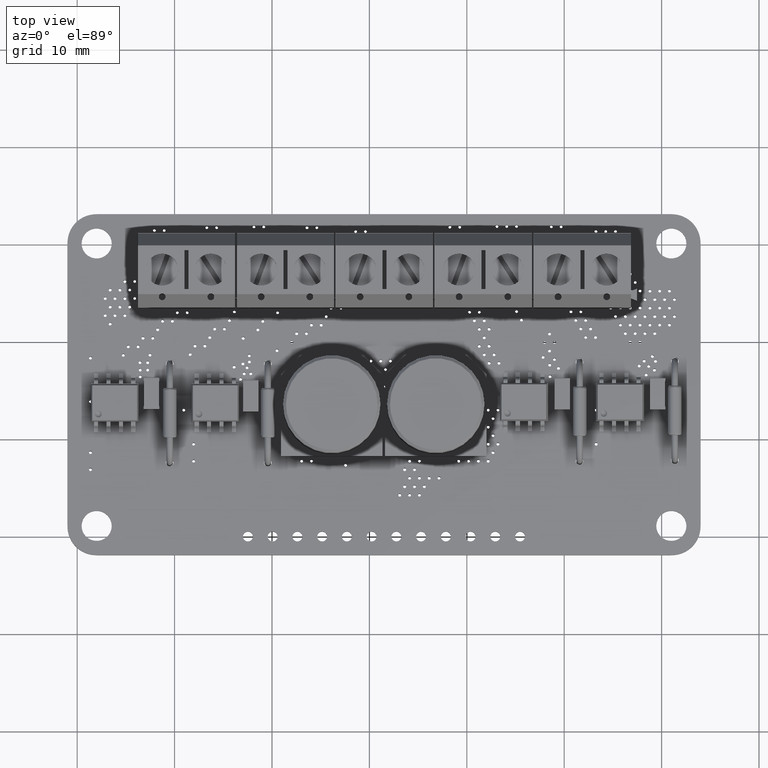
[diagram: clean part render]
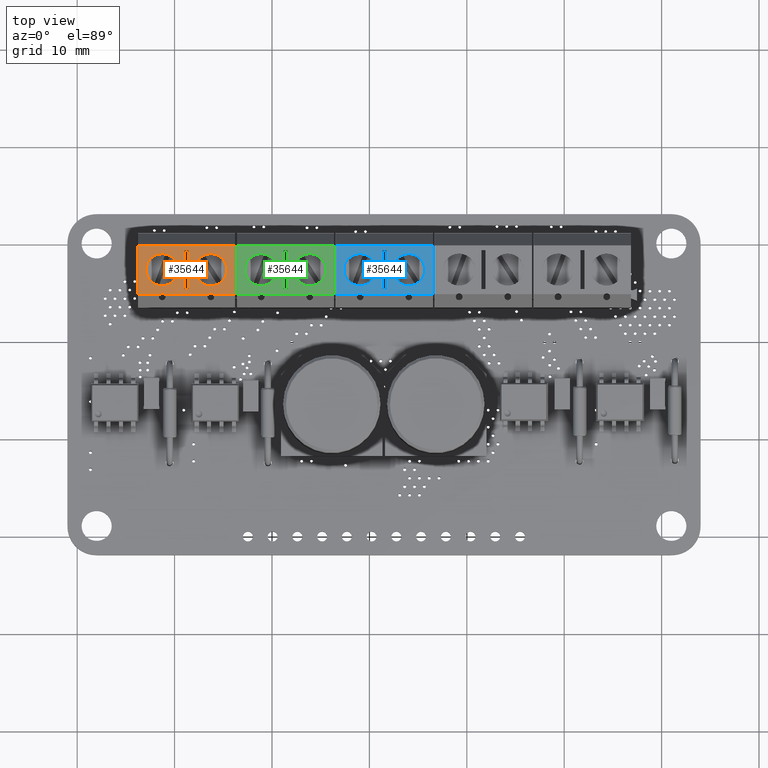
[diagram: same view with three faces highlighted in distinct colors, each labeled with its STEP entity id]
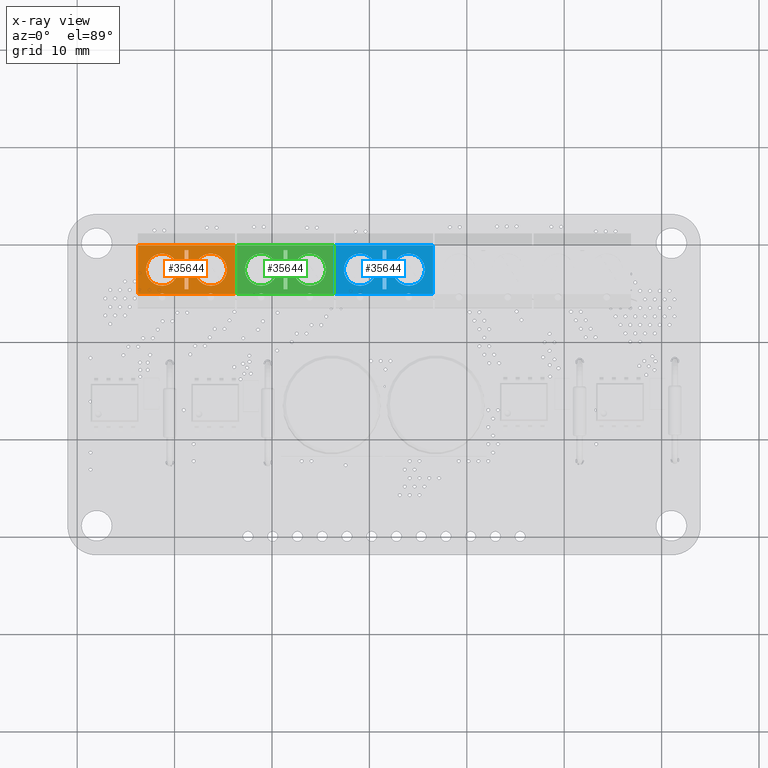
[diagram: x-ray of the same camera — body ghosted, the three highlighted faces saturated]
A machine part, top view with three faces highlighted in distinct colors.
The next image is the same camera in x-ray (body ghosted, the three faces saturated) — at least one of them is partly hidden behind the body in this view.
Their STEP definitions:

[orange] entity #35644 — the highlighted planar face has unit normal (-0, 0, 1).
#34349 = VERTEX_POINT('',#34350);
#34350 = CARTESIAN_POINT('',(2.5,10.,-2.43));
#34356 = EDGE_CURVE('',#34357,#34349,#34359,.T.);
#34357 = VERTEX_POINT('',#34358);
#34358 = CARTESIAN_POINT('',(2.29,10.,-2.5));
#34359 = CIRCLE('',#34360,0.35);
#34360 = AXIS2_PLACEMENT_3D('',#34361,#34362,#34363);
#34361 = CARTESIAN_POINT('',(2.5,10.,-2.78));
#34362 = DIRECTION('',(0.E+000,1.,0.E+000));
#34363 = DIRECTION('',(0.E+000,-0.E+000,1.));
#34400 = VERTEX_POINT('',#34401);
#34401 = CARTESIAN_POINT('',(-2.5,10.,-2.43));
#34407 = EDGE_CURVE('',#34408,#34400,#34410,.T.);
#34408 = VERTEX_POINT('',#34409);
#34409 = CARTESIAN_POINT('',(-2.71,10.,-2.5));
#34410 = CIRCLE('',#34411,0.35);
#34411 = AXIS2_PLACEMENT_3D('',#34412,#34413,#34414);
#34412 = CARTESIAN_POINT('',(-2.5,10.,-2.78));
#34413 = DIRECTION('',(0.E+000,1.,0.E+000));
#34414 = DIRECTION('',(0.E+000,-0.E+000,1.));
#34485 = VERTEX_POINT('',#34486);
#34486 = CARTESIAN_POINT('',(2.5,10.,1.65));
#34492 = EDGE_CURVE('',#34493,#34485,#34495,.T.);
#34493 = VERTEX_POINT('',#34494);
#34494 = CARTESIAN_POINT('',(2.5,10.,-1.65));
#34495 = CIRCLE('',#34496,1.65);
#34496 = AXIS2_PLACEMENT_3D('',#34497,#34498,#34499);
#34497 = CARTESIAN_POINT('',(2.5,10.,0.E+000));
#34498 = DIRECTION('',(0.E+000,1.,0.E+000));
#34499 = DIRECTION('',(0.E+000,-0.E+000,1.));
#34561 = VERTEX_POINT('',#34562);
#34562 = CARTESIAN_POINT('',(-2.5,10.,1.65));
#34568 = EDGE_CURVE('',#34569,#34561,#34571,.T.);
#34569 = VERTEX_POINT('',#34570);
#34570 = CARTESIAN_POINT('',(-2.5,10.,-1.65));
#34571 = CIRCLE('',#34572,1.65);
#34572 = AXIS2_PLACEMENT_3D('',#34573,#34574,#34575);
#34573 = CARTESIAN_POINT('',(-2.5,10.,0.E+000));
#34574 = DIRECTION('',(0.E+000,1.,0.E+000));
#34575 = DIRECTION('',(0.E+000,-0.E+000,1.));
#35009 = VERTEX_POINT('',#35010);
#35010 = CARTESIAN_POINT('',(5.,10.,-2.5));
#35016 = EDGE_CURVE('',#35017,#35009,#35019,.T.);
#35017 = VERTEX_POINT('',#35018);
#35018 = CARTESIAN_POINT('',(5.,10.,2.5));
#35019 = LINE('',#35020,#35021);
#35020 = CARTESIAN_POINT('',(5.,10.,-3.8));
#35021 = VECTOR('',#35022,1.);
#35022 = DIRECTION('',(-1.141265444722E-016,-0.E+000,-1.));
#35236 = VERTEX_POINT('',#35237);
#35237 = CARTESIAN_POINT('',(-5.,10.,2.5));
#35243 = EDGE_CURVE('',#35244,#35236,#35246,.T.);
#35244 = VERTEX_POINT('',#35245);
#35245 = CARTESIAN_POINT('',(-5.,10.,-2.5));
#35246 = LINE('',#35247,#35248);
#35247 = CARTESIAN_POINT('',(-5.,10.,-3.8));
#35248 = VECTOR('',#35249,1.);
#35249 = DIRECTION('',(1.141265444722E-016,0.E+000,1.));
#35644 = ADVANCED_FACE('',(#35645,#35693,#35727,#35737),#35747,.T.);
#35645 = FACE_BOUND('',#35646,.T.);
#35646 = EDGE_LOOP('',(#35647,#35648,#35656,#35663,#35664,#35670,#35671,
    #35677,#35678,#35686));
#35647 = ORIENTED_EDGE('',*,*,#34356,.F.);
#35648 = ORIENTED_EDGE('',*,*,#35649,.F.);
#35649 = EDGE_CURVE('',#35650,#34357,#35652,.T.);
#35650 = VERTEX_POINT('',#35651);
#35651 = CARTESIAN_POINT('',(-2.29,10.,-2.5));
#35652 = LINE('',#35653,#35654);
#35653 = CARTESIAN_POINT('',(-5.,10.,-2.5));
#35654 = VECTOR('',#35655,1.);
#35655 = DIRECTION('',(1.,-0.E+000,-0.E+000));
#35656 = ORIENTED_EDGE('',*,*,#35657,.F.);
#35657 = EDGE_CURVE('',#34400,#35650,#35658,.T.);
#35658 = CIRCLE('',#35659,0.35);
#35659 = AXIS2_PLACEMENT_3D('',#35660,#35661,#35662);
#35660 = CARTESIAN_POINT('',(-2.5,10.,-2.78));
#35661 = DIRECTION('',(0.E+000,1.,0.E+000));
#35662 = DIRECTION('',(0.E+000,-0.E+000,1.));
#35663 = ORIENTED_EDGE('',*,*,#34407,.F.);
#35664 = ORIENTED_EDGE('',*,*,#35665,.F.);
#35665 = EDGE_CURVE('',#35244,#34408,#35666,.T.);
#35666 = LINE('',#35667,#35668);
#35667 = CARTESIAN_POINT('',(-5.,10.,-2.5));
#35668 = VECTOR('',#35669,1.);
#35669 = DIRECTION('',(1.,-0.E+000,-0.E+000));
#35670 = ORIENTED_EDGE('',*,*,#35243,.T.);
#35671 = ORIENTED_EDGE('',*,*,#35672,.T.);
#35672 = EDGE_CURVE('',#35236,#35017,#35673,.T.);
#35673 = LINE('',#35674,#35675);
#35674 = CARTESIAN_POINT('',(-5.,10.,2.5));
#35675 = VECTOR('',#35676,1.);
#35676 = DIRECTION('',(1.,-0.E+000,-0.E+000));
#35677 = ORIENTED_EDGE('',*,*,#35016,.T.);
#35678 = ORIENTED_EDGE('',*,*,#35679,.F.);
#35679 = EDGE_CURVE('',#35680,#35009,#35682,.T.);
#35680 = VERTEX_POINT('',#35681);
#35681 = CARTESIAN_POINT('',(2.71,10.,-2.5));
#35682 = LINE('',#35683,#35684);
#35683 = CARTESIAN_POINT('',(-5.,10.,-2.5));
#35684 = VECTOR('',#35685,1.);
#35685 = DIRECTION('',(1.,-0.E+000,-0.E+000));
#35686 = ORIENTED_EDGE('',*,*,#35687,.F.);
#35687 = EDGE_CURVE('',#34349,#35680,#35688,.T.);
#35688 = CIRCLE('',#35689,0.35);
#35689 = AXIS2_PLACEMENT_3D('',#35690,#35691,#35692);
#35690 = CARTESIAN_POINT('',(2.5,10.,-2.78));
#35691 = DIRECTION('',(0.E+000,1.,0.E+000));
#35692 = DIRECTION('',(0.E+000,-0.E+000,1.));
#35693 = FACE_BOUND('',#35694,.T.);
#35694 = EDGE_LOOP('',(#35695,#35705,#35713,#35721));
#35695 = ORIENTED_EDGE('',*,*,#35696,.F.);
#35696 = EDGE_CURVE('',#35697,#35699,#35701,.T.);
#35697 = VERTEX_POINT('',#35698);
#35698 = CARTESIAN_POINT('',(-0.2,10.,-2.));
#35699 = VERTEX_POINT('',#35700);
#35700 = CARTESIAN_POINT('',(-0.2,10.,2.));
#35701 = LINE('',#35702,#35703);
#35702 = CARTESIAN_POINT('',(-0.2,10.,-2.));
#35703 = VECTOR('',#35704,1.);
#35704 = DIRECTION('',(0.E+000,0.E+000,1.));
#35705 = ORIENTED_EDGE('',*,*,#35706,.F.);
#35706 = EDGE_CURVE('',#35707,#35697,#35709,.T.);
#35707 = VERTEX_POINT('',#35708);
#35708 = CARTESIAN_POINT('',(0.2,10.,-2.));
#35709 = LINE('',#35710,#35711);
#35710 = CARTESIAN_POINT('',(-0.2,10.,-2.));
#35711 = VECTOR('',#35712,1.);
#35712 = DIRECTION('',(-1.,-0.E+000,1.084202172486E-015));
#35713 = ORIENTED_EDGE('',*,*,#35714,.F.);
#35714 = EDGE_CURVE('',#35715,#35707,#35717,.T.);
#35715 = VERTEX_POINT('',#35716);
#35716 = CARTESIAN_POINT('',(0.2,10.,2.));
#35717 = LINE('',#35718,#35719);
#35718 = CARTESIAN_POINT('',(0.2,10.,-2.));
#35719 = VECTOR('',#35720,1.);
#35720 = DIRECTION('',(6.776263578034E-018,-0.E+000,-1.));
#35721 = ORIENTED_EDGE('',*,*,#35722,.F.);
#35722 = EDGE_CURVE('',#35699,#35715,#35723,.T.);
#35723 = LINE('',#35724,#35725);
#35724 = CARTESIAN_POINT('',(-0.2,10.,2.));
#35725 = VECTOR('',#35726,1.);
#35726 = DIRECTION('',(1.,0.E+000,-1.084202172486E-015));
#35727 = FACE_BOUND('',#35728,.T.);
#35728 = EDGE_LOOP('',(#35729,#35736));
#35729 = ORIENTED_EDGE('',*,*,#35730,.F.);
#35730 = EDGE_CURVE('',#34485,#34493,#35731,.T.);
#35731 = CIRCLE('',#35732,1.65);
#35732 = AXIS2_PLACEMENT_3D('',#35733,#35734,#35735);
#35733 = CARTESIAN_POINT('',(2.5,10.,0.E+000));
#35734 = DIRECTION('',(0.E+000,1.,0.E+000));
#35735 = DIRECTION('',(0.E+000,-0.E+000,1.));
#35736 = ORIENTED_EDGE('',*,*,#34492,.F.);
#35737 = FACE_BOUND('',#35738,.T.);
#35738 = EDGE_LOOP('',(#35739,#35746));
#35739 = ORIENTED_EDGE('',*,*,#35740,.F.);
#35740 = EDGE_CURVE('',#34561,#34569,#35741,.T.);
#35741 = CIRCLE('',#35742,1.65);
#35742 = AXIS2_PLACEMENT_3D('',#35743,#35744,#35745);
#35743 = CARTESIAN_POINT('',(-2.5,10.,0.E+000));
#35744 = DIRECTION('',(0.E+000,1.,0.E+000));
#35745 = DIRECTION('',(0.E+000,-0.E+000,1.));
#35746 = ORIENTED_EDGE('',*,*,#34568,.F.);
#35747 = PLANE('',#35748);
#35748 = AXIS2_PLACEMENT_3D('',#35749,#35750,#35751);
#35749 = CARTESIAN_POINT('',(-5.,10.,-3.8));
#35750 = DIRECTION('',(0.E+000,1.,0.E+000));
#35751 = DIRECTION('',(0.E+000,-0.E+000,1.));

[blue] entity #35644 — the highlighted planar face has unit normal (-0, 0, 1).
#34349 = VERTEX_POINT('',#34350);
#34350 = CARTESIAN_POINT('',(2.5,10.,-2.43));
#34356 = EDGE_CURVE('',#34357,#34349,#34359,.T.);
#34357 = VERTEX_POINT('',#34358);
#34358 = CARTESIAN_POINT('',(2.29,10.,-2.5));
#34359 = CIRCLE('',#34360,0.35);
#34360 = AXIS2_PLACEMENT_3D('',#34361,#34362,#34363);
#34361 = CARTESIAN_POINT('',(2.5,10.,-2.78));
#34362 = DIRECTION('',(0.E+000,1.,0.E+000));
#34363 = DIRECTION('',(0.E+000,-0.E+000,1.));
#34400 = VERTEX_POINT('',#34401);
#34401 = CARTESIAN_POINT('',(-2.5,10.,-2.43));
#34407 = EDGE_CURVE('',#34408,#34400,#34410,.T.);
#34408 = VERTEX_POINT('',#34409);
#34409 = CARTESIAN_POINT('',(-2.71,10.,-2.5));
#34410 = CIRCLE('',#34411,0.35);
#34411 = AXIS2_PLACEMENT_3D('',#34412,#34413,#34414);
#34412 = CARTESIAN_POINT('',(-2.5,10.,-2.78));
#34413 = DIRECTION('',(0.E+000,1.,0.E+000));
#34414 = DIRECTION('',(0.E+000,-0.E+000,1.));
#34485 = VERTEX_POINT('',#34486);
#34486 = CARTESIAN_POINT('',(2.5,10.,1.65));
#34492 = EDGE_CURVE('',#34493,#34485,#34495,.T.);
#34493 = VERTEX_POINT('',#34494);
#34494 = CARTESIAN_POINT('',(2.5,10.,-1.65));
#34495 = CIRCLE('',#34496,1.65);
#34496 = AXIS2_PLACEMENT_3D('',#34497,#34498,#34499);
#34497 = CARTESIAN_POINT('',(2.5,10.,0.E+000));
#34498 = DIRECTION('',(0.E+000,1.,0.E+000));
#34499 = DIRECTION('',(0.E+000,-0.E+000,1.));
#34561 = VERTEX_POINT('',#34562);
#34562 = CARTESIAN_POINT('',(-2.5,10.,1.65));
#34568 = EDGE_CURVE('',#34569,#34561,#34571,.T.);
#34569 = VERTEX_POINT('',#34570);
#34570 = CARTESIAN_POINT('',(-2.5,10.,-1.65));
#34571 = CIRCLE('',#34572,1.65);
#34572 = AXIS2_PLACEMENT_3D('',#34573,#34574,#34575);
#34573 = CARTESIAN_POINT('',(-2.5,10.,0.E+000));
#34574 = DIRECTION('',(0.E+000,1.,0.E+000));
#34575 = DIRECTION('',(0.E+000,-0.E+000,1.));
#35009 = VERTEX_POINT('',#35010);
#35010 = CARTESIAN_POINT('',(5.,10.,-2.5));
#35016 = EDGE_CURVE('',#35017,#35009,#35019,.T.);
#35017 = VERTEX_POINT('',#35018);
#35018 = CARTESIAN_POINT('',(5.,10.,2.5));
#35019 = LINE('',#35020,#35021);
#35020 = CARTESIAN_POINT('',(5.,10.,-3.8));
#35021 = VECTOR('',#35022,1.);
#35022 = DIRECTION('',(-1.141265444722E-016,-0.E+000,-1.));
#35236 = VERTEX_POINT('',#35237);
#35237 = CARTESIAN_POINT('',(-5.,10.,2.5));
#35243 = EDGE_CURVE('',#35244,#35236,#35246,.T.);
#35244 = VERTEX_POINT('',#35245);
#35245 = CARTESIAN_POINT('',(-5.,10.,-2.5));
#35246 = LINE('',#35247,#35248);
#35247 = CARTESIAN_POINT('',(-5.,10.,-3.8));
#35248 = VECTOR('',#35249,1.);
#35249 = DIRECTION('',(1.141265444722E-016,0.E+000,1.));
#35644 = ADVANCED_FACE('',(#35645,#35693,#35727,#35737),#35747,.T.);
#35645 = FACE_BOUND('',#35646,.T.);
#35646 = EDGE_LOOP('',(#35647,#35648,#35656,#35663,#35664,#35670,#35671,
    #35677,#35678,#35686));
#35647 = ORIENTED_EDGE('',*,*,#34356,.F.);
#35648 = ORIENTED_EDGE('',*,*,#35649,.F.);
#35649 = EDGE_CURVE('',#35650,#34357,#35652,.T.);
#35650 = VERTEX_POINT('',#35651);
#35651 = CARTESIAN_POINT('',(-2.29,10.,-2.5));
#35652 = LINE('',#35653,#35654);
#35653 = CARTESIAN_POINT('',(-5.,10.,-2.5));
#35654 = VECTOR('',#35655,1.);
#35655 = DIRECTION('',(1.,-0.E+000,-0.E+000));
#35656 = ORIENTED_EDGE('',*,*,#35657,.F.);
#35657 = EDGE_CURVE('',#34400,#35650,#35658,.T.);
#35658 = CIRCLE('',#35659,0.35);
#35659 = AXIS2_PLACEMENT_3D('',#35660,#35661,#35662);
#35660 = CARTESIAN_POINT('',(-2.5,10.,-2.78));
#35661 = DIRECTION('',(0.E+000,1.,0.E+000));
#35662 = DIRECTION('',(0.E+000,-0.E+000,1.));
#35663 = ORIENTED_EDGE('',*,*,#34407,.F.);
#35664 = ORIENTED_EDGE('',*,*,#35665,.F.);
#35665 = EDGE_CURVE('',#35244,#34408,#35666,.T.);
#35666 = LINE('',#35667,#35668);
#35667 = CARTESIAN_POINT('',(-5.,10.,-2.5));
#35668 = VECTOR('',#35669,1.);
#35669 = DIRECTION('',(1.,-0.E+000,-0.E+000));
#35670 = ORIENTED_EDGE('',*,*,#35243,.T.);
#35671 = ORIENTED_EDGE('',*,*,#35672,.T.);
#35672 = EDGE_CURVE('',#35236,#35017,#35673,.T.);
#35673 = LINE('',#35674,#35675);
#35674 = CARTESIAN_POINT('',(-5.,10.,2.5));
#35675 = VECTOR('',#35676,1.);
#35676 = DIRECTION('',(1.,-0.E+000,-0.E+000));
#35677 = ORIENTED_EDGE('',*,*,#35016,.T.);
#35678 = ORIENTED_EDGE('',*,*,#35679,.F.);
#35679 = EDGE_CURVE('',#35680,#35009,#35682,.T.);
#35680 = VERTEX_POINT('',#35681);
#35681 = CARTESIAN_POINT('',(2.71,10.,-2.5));
#35682 = LINE('',#35683,#35684);
#35683 = CARTESIAN_POINT('',(-5.,10.,-2.5));
#35684 = VECTOR('',#35685,1.);
#35685 = DIRECTION('',(1.,-0.E+000,-0.E+000));
#35686 = ORIENTED_EDGE('',*,*,#35687,.F.);
#35687 = EDGE_CURVE('',#34349,#35680,#35688,.T.);
#35688 = CIRCLE('',#35689,0.35);
#35689 = AXIS2_PLACEMENT_3D('',#35690,#35691,#35692);
#35690 = CARTESIAN_POINT('',(2.5,10.,-2.78));
#35691 = DIRECTION('',(0.E+000,1.,0.E+000));
#35692 = DIRECTION('',(0.E+000,-0.E+000,1.));
#35693 = FACE_BOUND('',#35694,.T.);
#35694 = EDGE_LOOP('',(#35695,#35705,#35713,#35721));
#35695 = ORIENTED_EDGE('',*,*,#35696,.F.);
#35696 = EDGE_CURVE('',#35697,#35699,#35701,.T.);
#35697 = VERTEX_POINT('',#35698);
#35698 = CARTESIAN_POINT('',(-0.2,10.,-2.));
#35699 = VERTEX_POINT('',#35700);
#35700 = CARTESIAN_POINT('',(-0.2,10.,2.));
#35701 = LINE('',#35702,#35703);
#35702 = CARTESIAN_POINT('',(-0.2,10.,-2.));
#35703 = VECTOR('',#35704,1.);
#35704 = DIRECTION('',(0.E+000,0.E+000,1.));
#35705 = ORIENTED_EDGE('',*,*,#35706,.F.);
#35706 = EDGE_CURVE('',#35707,#35697,#35709,.T.);
#35707 = VERTEX_POINT('',#35708);
#35708 = CARTESIAN_POINT('',(0.2,10.,-2.));
#35709 = LINE('',#35710,#35711);
#35710 = CARTESIAN_POINT('',(-0.2,10.,-2.));
#35711 = VECTOR('',#35712,1.);
#35712 = DIRECTION('',(-1.,-0.E+000,1.084202172486E-015));
#35713 = ORIENTED_EDGE('',*,*,#35714,.F.);
#35714 = EDGE_CURVE('',#35715,#35707,#35717,.T.);
#35715 = VERTEX_POINT('',#35716);
#35716 = CARTESIAN_POINT('',(0.2,10.,2.));
#35717 = LINE('',#35718,#35719);
#35718 = CARTESIAN_POINT('',(0.2,10.,-2.));
#35719 = VECTOR('',#35720,1.);
#35720 = DIRECTION('',(6.776263578034E-018,-0.E+000,-1.));
#35721 = ORIENTED_EDGE('',*,*,#35722,.F.);
#35722 = EDGE_CURVE('',#35699,#35715,#35723,.T.);
#35723 = LINE('',#35724,#35725);
#35724 = CARTESIAN_POINT('',(-0.2,10.,2.));
#35725 = VECTOR('',#35726,1.);
#35726 = DIRECTION('',(1.,0.E+000,-1.084202172486E-015));
#35727 = FACE_BOUND('',#35728,.T.);
#35728 = EDGE_LOOP('',(#35729,#35736));
#35729 = ORIENTED_EDGE('',*,*,#35730,.F.);
#35730 = EDGE_CURVE('',#34485,#34493,#35731,.T.);
#35731 = CIRCLE('',#35732,1.65);
#35732 = AXIS2_PLACEMENT_3D('',#35733,#35734,#35735);
#35733 = CARTESIAN_POINT('',(2.5,10.,0.E+000));
#35734 = DIRECTION('',(0.E+000,1.,0.E+000));
#35735 = DIRECTION('',(0.E+000,-0.E+000,1.));
#35736 = ORIENTED_EDGE('',*,*,#34492,.F.);
#35737 = FACE_BOUND('',#35738,.T.);
#35738 = EDGE_LOOP('',(#35739,#35746));
#35739 = ORIENTED_EDGE('',*,*,#35740,.F.);
#35740 = EDGE_CURVE('',#34561,#34569,#35741,.T.);
#35741 = CIRCLE('',#35742,1.65);
#35742 = AXIS2_PLACEMENT_3D('',#35743,#35744,#35745);
#35743 = CARTESIAN_POINT('',(-2.5,10.,0.E+000));
#35744 = DIRECTION('',(0.E+000,1.,0.E+000));
#35745 = DIRECTION('',(0.E+000,-0.E+000,1.));
#35746 = ORIENTED_EDGE('',*,*,#34568,.F.);
#35747 = PLANE('',#35748);
#35748 = AXIS2_PLACEMENT_3D('',#35749,#35750,#35751);
#35749 = CARTESIAN_POINT('',(-5.,10.,-3.8));
#35750 = DIRECTION('',(0.E+000,1.,0.E+000));
#35751 = DIRECTION('',(0.E+000,-0.E+000,1.));

[green] entity #35644 — the highlighted planar face has unit normal (-0, 0, 1).
#34349 = VERTEX_POINT('',#34350);
#34350 = CARTESIAN_POINT('',(2.5,10.,-2.43));
#34356 = EDGE_CURVE('',#34357,#34349,#34359,.T.);
#34357 = VERTEX_POINT('',#34358);
#34358 = CARTESIAN_POINT('',(2.29,10.,-2.5));
#34359 = CIRCLE('',#34360,0.35);
#34360 = AXIS2_PLACEMENT_3D('',#34361,#34362,#34363);
#34361 = CARTESIAN_POINT('',(2.5,10.,-2.78));
#34362 = DIRECTION('',(0.E+000,1.,0.E+000));
#34363 = DIRECTION('',(0.E+000,-0.E+000,1.));
#34400 = VERTEX_POINT('',#34401);
#34401 = CARTESIAN_POINT('',(-2.5,10.,-2.43));
#34407 = EDGE_CURVE('',#34408,#34400,#34410,.T.);
#34408 = VERTEX_POINT('',#34409);
#34409 = CARTESIAN_POINT('',(-2.71,10.,-2.5));
#34410 = CIRCLE('',#34411,0.35);
#34411 = AXIS2_PLACEMENT_3D('',#34412,#34413,#34414);
#34412 = CARTESIAN_POINT('',(-2.5,10.,-2.78));
#34413 = DIRECTION('',(0.E+000,1.,0.E+000));
#34414 = DIRECTION('',(0.E+000,-0.E+000,1.));
#34485 = VERTEX_POINT('',#34486);
#34486 = CARTESIAN_POINT('',(2.5,10.,1.65));
#34492 = EDGE_CURVE('',#34493,#34485,#34495,.T.);
#34493 = VERTEX_POINT('',#34494);
#34494 = CARTESIAN_POINT('',(2.5,10.,-1.65));
#34495 = CIRCLE('',#34496,1.65);
#34496 = AXIS2_PLACEMENT_3D('',#34497,#34498,#34499);
#34497 = CARTESIAN_POINT('',(2.5,10.,0.E+000));
#34498 = DIRECTION('',(0.E+000,1.,0.E+000));
#34499 = DIRECTION('',(0.E+000,-0.E+000,1.));
#34561 = VERTEX_POINT('',#34562);
#34562 = CARTESIAN_POINT('',(-2.5,10.,1.65));
#34568 = EDGE_CURVE('',#34569,#34561,#34571,.T.);
#34569 = VERTEX_POINT('',#34570);
#34570 = CARTESIAN_POINT('',(-2.5,10.,-1.65));
#34571 = CIRCLE('',#34572,1.65);
#34572 = AXIS2_PLACEMENT_3D('',#34573,#34574,#34575);
#34573 = CARTESIAN_POINT('',(-2.5,10.,0.E+000));
#34574 = DIRECTION('',(0.E+000,1.,0.E+000));
#34575 = DIRECTION('',(0.E+000,-0.E+000,1.));
#35009 = VERTEX_POINT('',#35010);
#35010 = CARTESIAN_POINT('',(5.,10.,-2.5));
#35016 = EDGE_CURVE('',#35017,#35009,#35019,.T.);
#35017 = VERTEX_POINT('',#35018);
#35018 = CARTESIAN_POINT('',(5.,10.,2.5));
#35019 = LINE('',#35020,#35021);
#35020 = CARTESIAN_POINT('',(5.,10.,-3.8));
#35021 = VECTOR('',#35022,1.);
#35022 = DIRECTION('',(-1.141265444722E-016,-0.E+000,-1.));
#35236 = VERTEX_POINT('',#35237);
#35237 = CARTESIAN_POINT('',(-5.,10.,2.5));
#35243 = EDGE_CURVE('',#35244,#35236,#35246,.T.);
#35244 = VERTEX_POINT('',#35245);
#35245 = CARTESIAN_POINT('',(-5.,10.,-2.5));
#35246 = LINE('',#35247,#35248);
#35247 = CARTESIAN_POINT('',(-5.,10.,-3.8));
#35248 = VECTOR('',#35249,1.);
#35249 = DIRECTION('',(1.141265444722E-016,0.E+000,1.));
#35644 = ADVANCED_FACE('',(#35645,#35693,#35727,#35737),#35747,.T.);
#35645 = FACE_BOUND('',#35646,.T.);
#35646 = EDGE_LOOP('',(#35647,#35648,#35656,#35663,#35664,#35670,#35671,
    #35677,#35678,#35686));
#35647 = ORIENTED_EDGE('',*,*,#34356,.F.);
#35648 = ORIENTED_EDGE('',*,*,#35649,.F.);
#35649 = EDGE_CURVE('',#35650,#34357,#35652,.T.);
#35650 = VERTEX_POINT('',#35651);
#35651 = CARTESIAN_POINT('',(-2.29,10.,-2.5));
#35652 = LINE('',#35653,#35654);
#35653 = CARTESIAN_POINT('',(-5.,10.,-2.5));
#35654 = VECTOR('',#35655,1.);
#35655 = DIRECTION('',(1.,-0.E+000,-0.E+000));
#35656 = ORIENTED_EDGE('',*,*,#35657,.F.);
#35657 = EDGE_CURVE('',#34400,#35650,#35658,.T.);
#35658 = CIRCLE('',#35659,0.35);
#35659 = AXIS2_PLACEMENT_3D('',#35660,#35661,#35662);
#35660 = CARTESIAN_POINT('',(-2.5,10.,-2.78));
#35661 = DIRECTION('',(0.E+000,1.,0.E+000));
#35662 = DIRECTION('',(0.E+000,-0.E+000,1.));
#35663 = ORIENTED_EDGE('',*,*,#34407,.F.);
#35664 = ORIENTED_EDGE('',*,*,#35665,.F.);
#35665 = EDGE_CURVE('',#35244,#34408,#35666,.T.);
#35666 = LINE('',#35667,#35668);
#35667 = CARTESIAN_POINT('',(-5.,10.,-2.5));
#35668 = VECTOR('',#35669,1.);
#35669 = DIRECTION('',(1.,-0.E+000,-0.E+000));
#35670 = ORIENTED_EDGE('',*,*,#35243,.T.);
#35671 = ORIENTED_EDGE('',*,*,#35672,.T.);
#35672 = EDGE_CURVE('',#35236,#35017,#35673,.T.);
#35673 = LINE('',#35674,#35675);
#35674 = CARTESIAN_POINT('',(-5.,10.,2.5));
#35675 = VECTOR('',#35676,1.);
#35676 = DIRECTION('',(1.,-0.E+000,-0.E+000));
#35677 = ORIENTED_EDGE('',*,*,#35016,.T.);
#35678 = ORIENTED_EDGE('',*,*,#35679,.F.);
#35679 = EDGE_CURVE('',#35680,#35009,#35682,.T.);
#35680 = VERTEX_POINT('',#35681);
#35681 = CARTESIAN_POINT('',(2.71,10.,-2.5));
#35682 = LINE('',#35683,#35684);
#35683 = CARTESIAN_POINT('',(-5.,10.,-2.5));
#35684 = VECTOR('',#35685,1.);
#35685 = DIRECTION('',(1.,-0.E+000,-0.E+000));
#35686 = ORIENTED_EDGE('',*,*,#35687,.F.);
#35687 = EDGE_CURVE('',#34349,#35680,#35688,.T.);
#35688 = CIRCLE('',#35689,0.35);
#35689 = AXIS2_PLACEMENT_3D('',#35690,#35691,#35692);
#35690 = CARTESIAN_POINT('',(2.5,10.,-2.78));
#35691 = DIRECTION('',(0.E+000,1.,0.E+000));
#35692 = DIRECTION('',(0.E+000,-0.E+000,1.));
#35693 = FACE_BOUND('',#35694,.T.);
#35694 = EDGE_LOOP('',(#35695,#35705,#35713,#35721));
#35695 = ORIENTED_EDGE('',*,*,#35696,.F.);
#35696 = EDGE_CURVE('',#35697,#35699,#35701,.T.);
#35697 = VERTEX_POINT('',#35698);
#35698 = CARTESIAN_POINT('',(-0.2,10.,-2.));
#35699 = VERTEX_POINT('',#35700);
#35700 = CARTESIAN_POINT('',(-0.2,10.,2.));
#35701 = LINE('',#35702,#35703);
#35702 = CARTESIAN_POINT('',(-0.2,10.,-2.));
#35703 = VECTOR('',#35704,1.);
#35704 = DIRECTION('',(0.E+000,0.E+000,1.));
#35705 = ORIENTED_EDGE('',*,*,#35706,.F.);
#35706 = EDGE_CURVE('',#35707,#35697,#35709,.T.);
#35707 = VERTEX_POINT('',#35708);
#35708 = CARTESIAN_POINT('',(0.2,10.,-2.));
#35709 = LINE('',#35710,#35711);
#35710 = CARTESIAN_POINT('',(-0.2,10.,-2.));
#35711 = VECTOR('',#35712,1.);
#35712 = DIRECTION('',(-1.,-0.E+000,1.084202172486E-015));
#35713 = ORIENTED_EDGE('',*,*,#35714,.F.);
#35714 = EDGE_CURVE('',#35715,#35707,#35717,.T.);
#35715 = VERTEX_POINT('',#35716);
#35716 = CARTESIAN_POINT('',(0.2,10.,2.));
#35717 = LINE('',#35718,#35719);
#35718 = CARTESIAN_POINT('',(0.2,10.,-2.));
#35719 = VECTOR('',#35720,1.);
#35720 = DIRECTION('',(6.776263578034E-018,-0.E+000,-1.));
#35721 = ORIENTED_EDGE('',*,*,#35722,.F.);
#35722 = EDGE_CURVE('',#35699,#35715,#35723,.T.);
#35723 = LINE('',#35724,#35725);
#35724 = CARTESIAN_POINT('',(-0.2,10.,2.));
#35725 = VECTOR('',#35726,1.);
#35726 = DIRECTION('',(1.,0.E+000,-1.084202172486E-015));
#35727 = FACE_BOUND('',#35728,.T.);
#35728 = EDGE_LOOP('',(#35729,#35736));
#35729 = ORIENTED_EDGE('',*,*,#35730,.F.);
#35730 = EDGE_CURVE('',#34485,#34493,#35731,.T.);
#35731 = CIRCLE('',#35732,1.65);
#35732 = AXIS2_PLACEMENT_3D('',#35733,#35734,#35735);
#35733 = CARTESIAN_POINT('',(2.5,10.,0.E+000));
#35734 = DIRECTION('',(0.E+000,1.,0.E+000));
#35735 = DIRECTION('',(0.E+000,-0.E+000,1.));
#35736 = ORIENTED_EDGE('',*,*,#34492,.F.);
#35737 = FACE_BOUND('',#35738,.T.);
#35738 = EDGE_LOOP('',(#35739,#35746));
#35739 = ORIENTED_EDGE('',*,*,#35740,.F.);
#35740 = EDGE_CURVE('',#34561,#34569,#35741,.T.);
#35741 = CIRCLE('',#35742,1.65);
#35742 = AXIS2_PLACEMENT_3D('',#35743,#35744,#35745);
#35743 = CARTESIAN_POINT('',(-2.5,10.,0.E+000));
#35744 = DIRECTION('',(0.E+000,1.,0.E+000));
#35745 = DIRECTION('',(0.E+000,-0.E+000,1.));
#35746 = ORIENTED_EDGE('',*,*,#34568,.F.);
#35747 = PLANE('',#35748);
#35748 = AXIS2_PLACEMENT_3D('',#35749,#35750,#35751);
#35749 = CARTESIAN_POINT('',(-5.,10.,-3.8));
#35750 = DIRECTION('',(0.E+000,1.,0.E+000));
#35751 = DIRECTION('',(0.E+000,-0.E+000,1.));